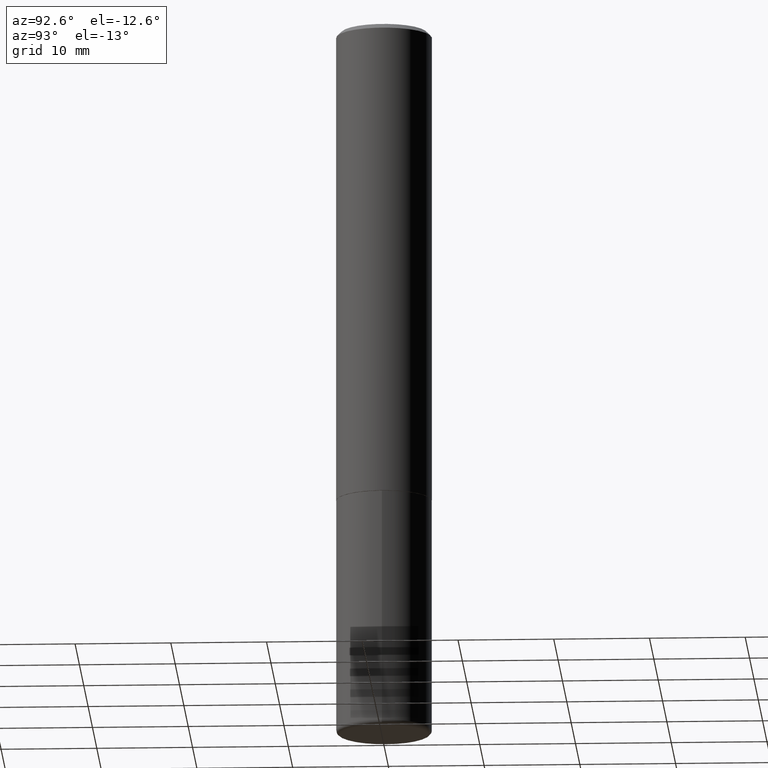
[diagram: clean part render]
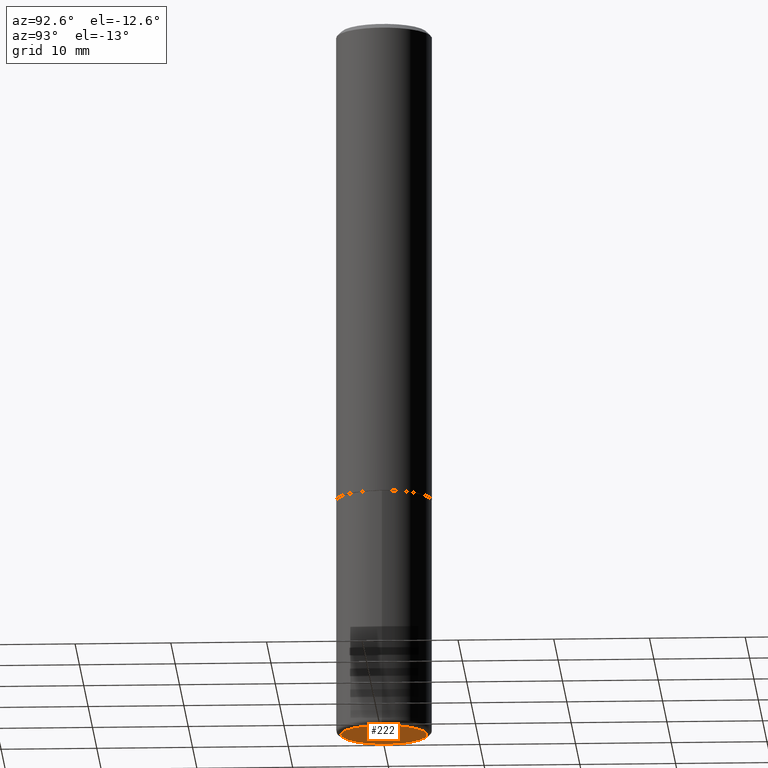
[diagram: same view with one face highlighted and labeled with its STEP entity id]
A machine part, auxiliary view. The second image highlights one B-rep face of the part: STEP entity #222.
In plain terms, the highlighted planar face has unit normal (0, -0, -1).
Its self-contained STEP definition (entity closure, byte-faithful):
#36 = CIRCLE ( 'NONE', #368, 0.1771500000000000019 ) ;
#59 = CARTESIAN_POINT ( 'NONE',  ( -0.1771500000000000019, -8.946540090277048352E-15, -2.952799999999999869 ) ) ;
#61 = DIRECTION ( 'NONE',  ( -2.445468806185136597E-29, 3.491481338843145583E-15, 1.000000000000000000 ) ) ;
#62 = AXIS2_PLACEMENT_3D ( 'NONE', #124, #88, #127 ) ;
#88 = DIRECTION ( 'NONE',  ( 2.438088387897960049E-29, -3.491481338843145188E-15, -1.000000000000000000 ) ) ;
#124 = CARTESIAN_POINT ( 'NONE',  ( 7.220980290903470182E-29, -1.030964609733603853E-14, -2.952799999999999869 ) ) ;
#127 = DIRECTION ( 'NONE',  ( -1.000000000000000000, 6.982962677686265922E-15, -4.876176775795935793E-29 ) ) ;
#144 = CARTESIAN_POINT ( 'NONE',  ( 0.1771500000000000019, -1.154667793568816250E-14, -2.952799999999999869 ) ) ;
#146 = CARTESIAN_POINT ( 'NONE',  ( 7.220980290903470182E-29, -1.030964609733603853E-14, -2.952799999999999869 ) ) ;
#164 = EDGE_CURVE ( 'NONE', #298, #181, #395, .T. ) ;
#181 = VERTEX_POINT ( 'NONE', #59 ) ;
#201 = AXIS2_PLACEMENT_3D ( 'NONE', #146, #248, #251 ) ;
#214 = DIRECTION ( 'NONE',  ( 1.000000000000000000, -6.982962677686272233E-15, 0.000000000000000000 ) ) ;
#222 = ADVANCED_FACE ( 'NONE', ( #389 ), #310, .T. ) ;
#242 = EDGE_CURVE ( 'NONE', #181, #298, #36, .T. ) ;
#248 = DIRECTION ( 'NONE',  ( -2.445468806185136597E-29, 3.491481338843145583E-15, 1.000000000000000000 ) ) ;
#251 = DIRECTION ( 'NONE',  ( 1.000000000000000000, -6.982962677686272233E-15, 0.000000000000000000 ) ) ;
#258 = ORIENTED_EDGE ( 'NONE', *, *, #242, .F. ) ;
#262 = ORIENTED_EDGE ( 'NONE', *, *, #164, .F. ) ;
#298 = VERTEX_POINT ( 'NONE', #144 ) ;
#299 = EDGE_LOOP ( 'NONE', ( #262, #258 ) ) ;
#310 = PLANE ( 'NONE',  #62 ) ;
#342 = CARTESIAN_POINT ( 'NONE',  ( 7.220980290903470182E-29, -1.030964609733603853E-14, -2.952799999999999869 ) ) ;
#368 = AXIS2_PLACEMENT_3D ( 'NONE', #342, #61, #214 ) ;
#389 = FACE_OUTER_BOUND ( 'NONE', #299, .T. ) ;
#395 = CIRCLE ( 'NONE', #201, 0.1771500000000000019 ) ;